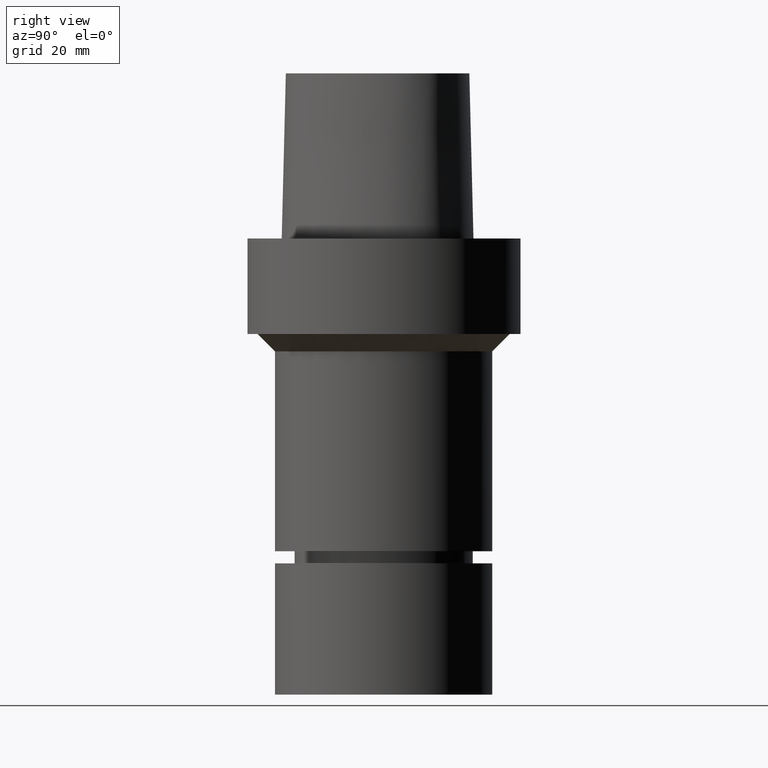
[diagram: clean part render]
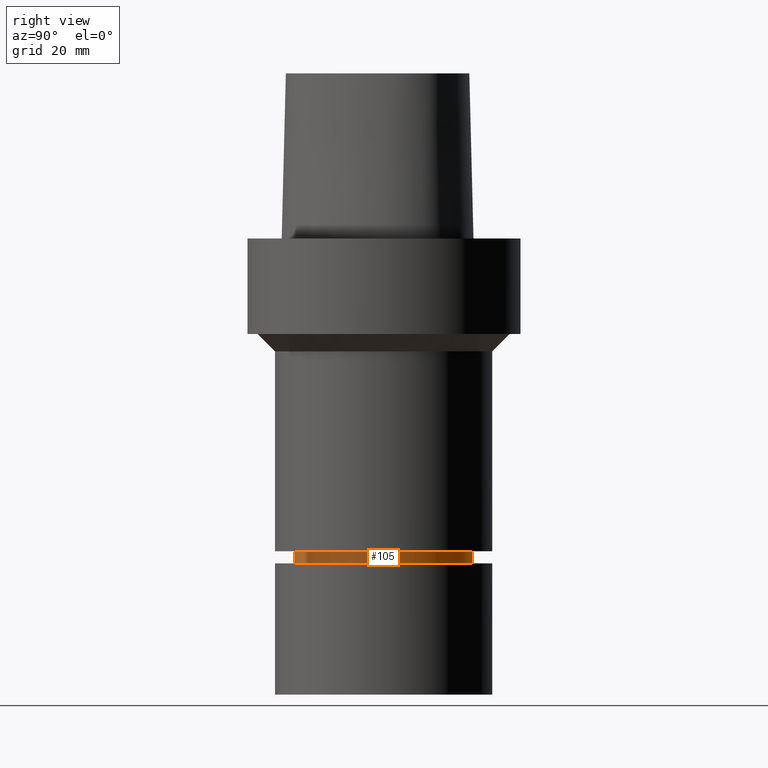
[diagram: same view with one face highlighted and labeled with its STEP entity id]
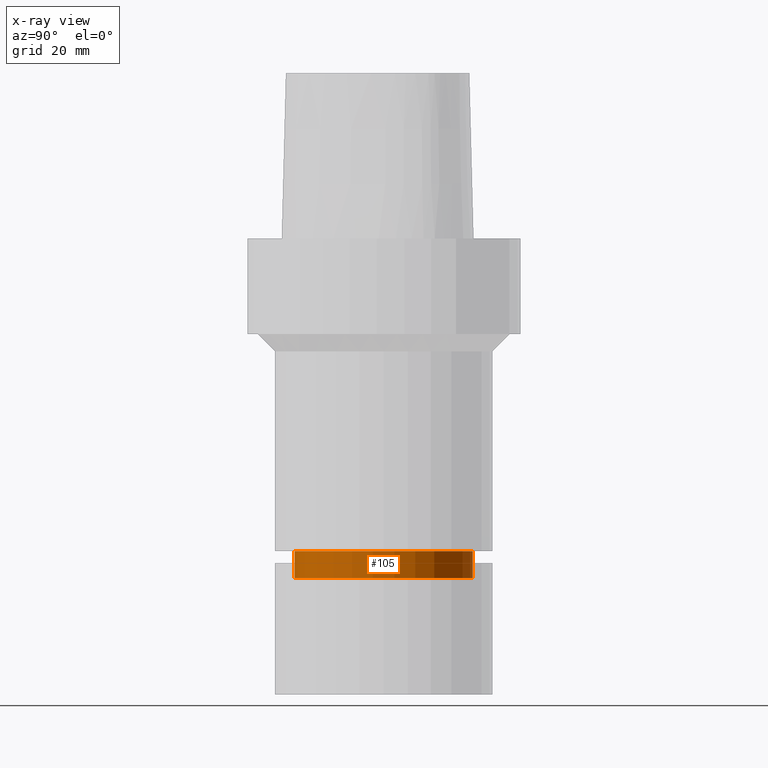
[diagram: x-ray of the same camera — body ghosted, the highlighted face saturated]
A machine part, right view. The second image highlights one B-rep face of the part: STEP entity #105.
The next image is the same camera in x-ray: the body ghosted, the highlighted face saturated — about 0% of this face is hidden behind the body in this view.
In plain terms, the highlighted cylindrical surface (bore or boss wall) has radius 20.5 mm, axis along (0, 0, -1).
Its self-contained STEP definition (entity closure, byte-faithful):
#98=EDGE_CURVE('Unnamed[1]',#232,#232,#233,.T.);
#105=ADVANCED_FACE('Unnamed[1]',(#242,#243),#244,.T.);
#149=EDGE_CURVE('Unnamed[1]',#305,#305,#306,.T.);
#232=VERTEX_POINT('',#417);
#233=CIRCLE('',#418,20.5000000000012);
#242=FACE_BOUND('',#431,.T.);
#243=FACE_BOUND('',#432,.T.);
#244=CYLINDRICAL_SURFACE('',#433,20.4999999999961);
#305=VERTEX_POINT('',#680);
#306=CIRCLE('',#681,20.4999999999911);
#417=CARTESIAN_POINT('',(4.78907208101742E-015,20.5000000000012,-78.211482434801));
#418=AXIS2_PLACEMENT_3D('',#782,#783,#784);
#431=EDGE_LOOP('',(#790));
#432=EDGE_LOOP('',(#791));
#433=AXIS2_PLACEMENT_3D('',#792,#793,#794);
#680=CARTESIAN_POINT('',(4.4087381252738E-015,20.4999999999911,-72.0001575694042));
#681=AXIS2_PLACEMENT_3D('',#856,#857,#858);
#782=CARTESIAN_POINT('',(4.78907208101742E-015,9.57814416203485E-015,-78.211482434801));
#783=DIRECTION('',(6.12323399573677E-017,1.22464679914735E-016,-1.0));
#784=DIRECTION('',(-1.23259516440783E-032,1.0,1.22464679914735E-016));
#790=ORIENTED_EDGE('',*,*,#98,.F.);
#791=ORIENTED_EDGE('',*,*,#149,.T.);
#792=CARTESIAN_POINT('',(4.59890510314561E-015,9.19781020629122E-015,-75.1058200021026));
#793=DIRECTION('',(6.12323399573677E-017,1.22464679914735E-016,-1.0));
#794=DIRECTION('',(-1.23259516440783E-032,1.0,1.22464679914735E-016));
#856=CARTESIAN_POINT('',(4.4087381252738E-015,8.81747625054759E-015,-72.0001575694042));
#857=DIRECTION('',(6.12323399573677E-017,1.22464679914735E-016,-1.0));
#858=DIRECTION('',(-1.23259516440783E-032,1.0,1.22464679914735E-016));